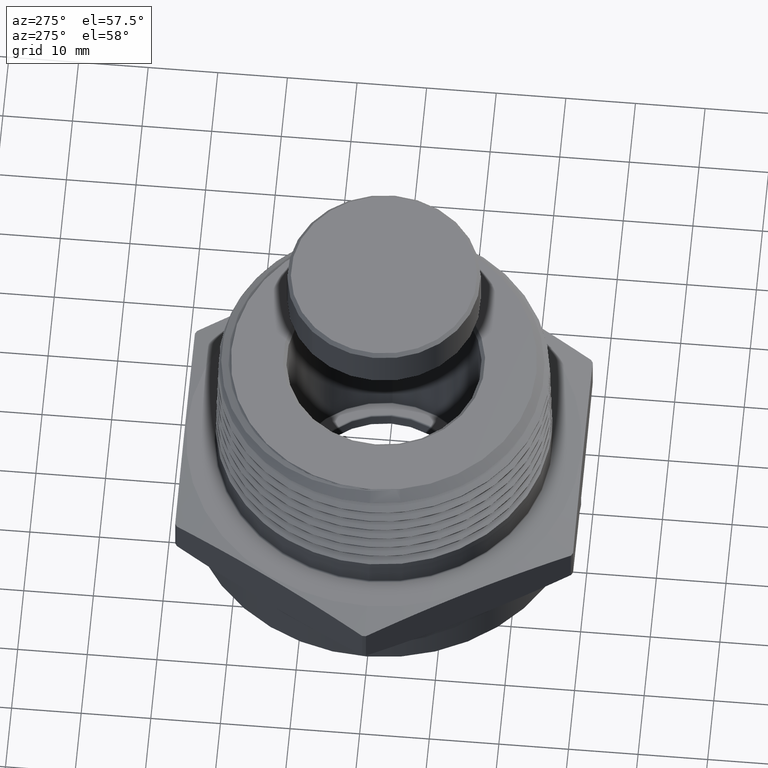
[diagram: clean part render]
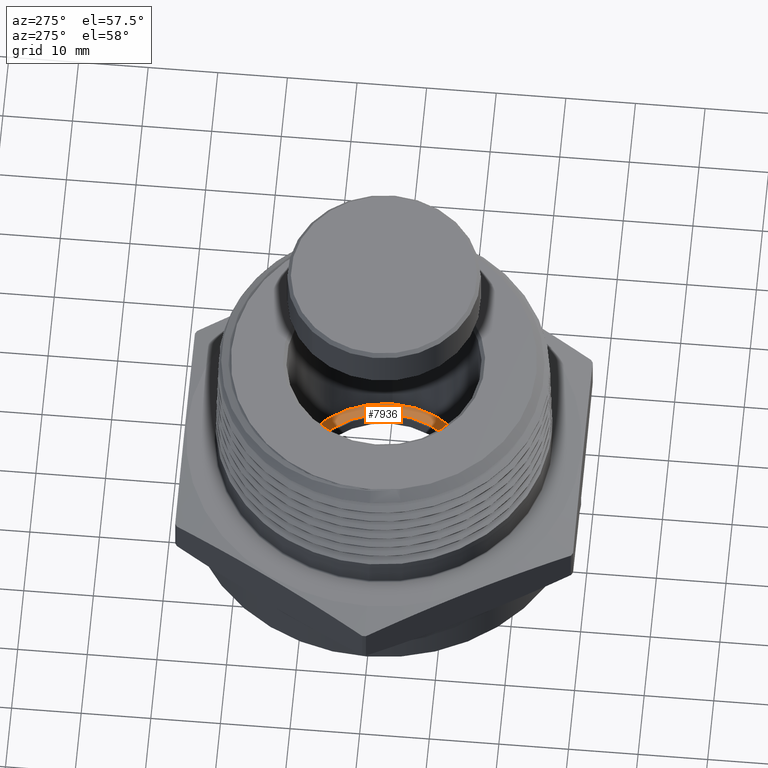
[diagram: same view with one face highlighted and labeled with its STEP entity id]
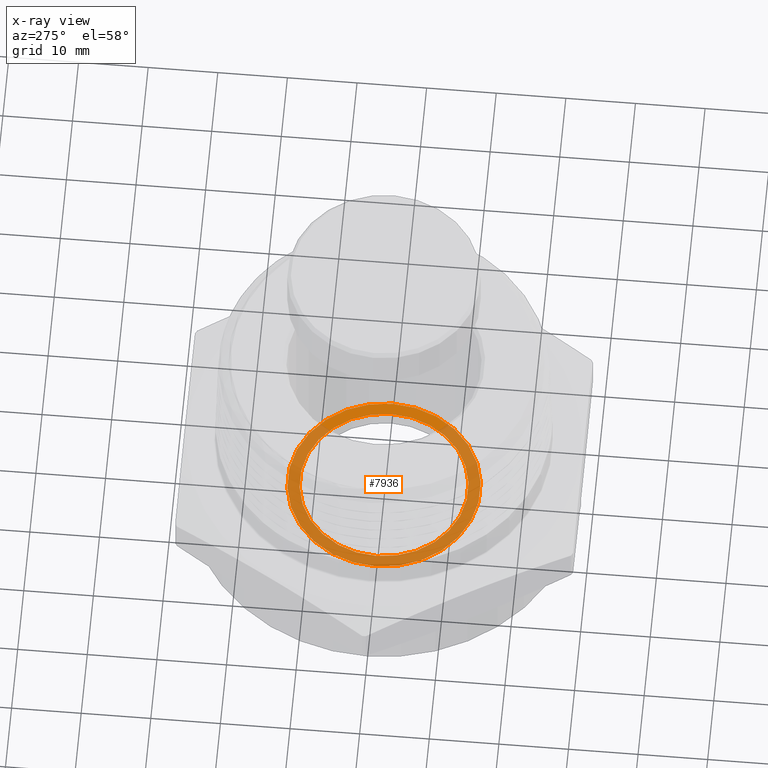
[diagram: x-ray of the same camera — body ghosted, the highlighted face saturated]
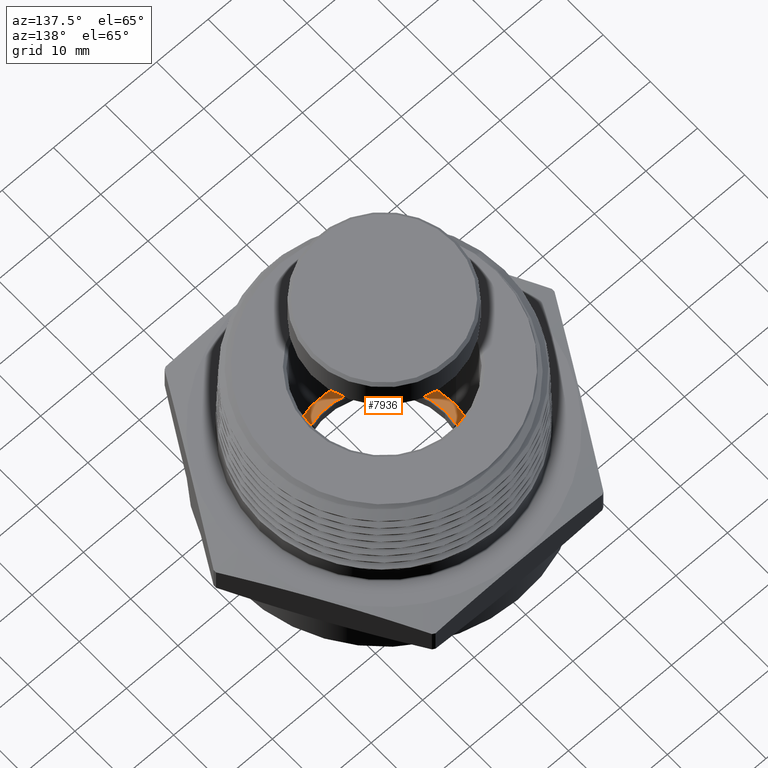
[diagram: same view with one face highlighted and labeled with its STEP entity id]
A machine part, auxiliary view. The second image highlights one B-rep face of the part: STEP entity #7936.
The next image is the same camera in x-ray: the body ghosted, the highlighted face saturated — about 77% of this face is hidden behind the body in this view.
A second angle (auxiliary view) of the same face is appended — the face is thin or edge-on in the first view.
In plain terms, the highlighted planar face has unit normal (0, 0, 1).
Its self-contained STEP definition (entity closure, byte-faithful):
#110 = AXIS2_PLACEMENT_3D ( 'NONE', #6115, #6116, #6117 ) ;
#111 = AXIS2_PLACEMENT_3D ( 'NONE', #6118, #6119, #6120 ) ;
#118 = AXIS2_PLACEMENT_3D ( 'NONE', #882, #883, #884 ) ;
#342 = CARTESIAN_POINT ( 'NONE',  ( 0.5450000000000000400, 0.0000000000000000000, -0.1959999999999999800 ) ) ;
#343 = CARTESIAN_POINT ( 'NONE',  ( -0.4760000000000002000, 5.829318763941404400E-017, -0.1959999999999999800 ) ) ;
#353 = CARTESIAN_POINT ( 'NONE',  ( 0.4760000000000002000, 0.0000000000000000000, -0.1959999999999999800 ) ) ;
#361 = CARTESIAN_POINT ( 'NONE',  ( -0.5450000000000000400, 6.704941225331759400E-017, -0.1959999999999999800 ) ) ;
#882 = CARTESIAN_POINT ( 'NONE',  ( 7.970242977951915400E-018, 0.0000000000000000000, -0.1959999999999999800 ) ) ;
#883 = DIRECTION ( 'NONE',  ( -2.198820216922793900E-017, 0.0000000000000000000, -1.000000000000000000 ) ) ;
#884 = DIRECTION ( 'NONE',  ( 1.000000000000000000, 0.0000000000000000000, 0.0000000000000000000 ) ) ;
#1629 = CIRCLE ( 'NONE', #3016, 0.5450000000000000400 ) ;
#1718 = FACE_BOUND ( 'NONE', #7830, .T. ) ;
#1720 = FACE_OUTER_BOUND ( 'NONE', #7839, .T. ) ;
#1742 = AXIS2_PLACEMENT_3D ( 'NONE', #3684, #3688, #3689 ) ;
#2143 = VERTEX_POINT ( 'NONE', #342 ) ;
#2146 = VERTEX_POINT ( 'NONE', #343 ) ;
#2152 = VERTEX_POINT ( 'NONE', #353 ) ;
#2160 = VERTEX_POINT ( 'NONE', #361 ) ;
#3016 = AXIS2_PLACEMENT_3D ( 'NONE', #3053, #3054, #3055 ) ;
#3053 = CARTESIAN_POINT ( 'NONE',  ( 7.970242977951915400E-018, 0.0000000000000000000, -0.1959999999999999800 ) ) ;
#3054 = DIRECTION ( 'NONE',  ( 2.198820216922793900E-017, -0.0000000000000000000, 1.000000000000000000 ) ) ;
#3055 = DIRECTION ( 'NONE',  ( 1.000000000000000000, 0.0000000000000000000, 0.0000000000000000000 ) ) ;
#3684 = CARTESIAN_POINT ( 'NONE',  ( -0.4660000000000001900, 0.0000000000000000000, -0.1959999999999999800 ) ) ;
#3686 = PLANE ( 'NONE',  #1742 ) ;
#3688 = DIRECTION ( 'NONE',  ( 2.198820216922793900E-017, -0.0000000000000000000, 1.000000000000000000 ) ) ;
#3689 = DIRECTION ( 'NONE',  ( 1.000000000000000000, 0.0000000000000000000, -2.198820216922793900E-017 ) ) ;
#5787 = EDGE_CURVE ( 'NONE', #2152, #2146, #7588, .T. ) ;
#5788 = EDGE_CURVE ( 'NONE', #2143, #2160, #7590, .T. ) ;
#5797 = EDGE_CURVE ( 'NONE', #2146, #2152, #7601, .T. ) ;
#5899 = ORIENTED_EDGE ( 'NONE', *, *, #5787, .T. ) ;
#5900 = ORIENTED_EDGE ( 'NONE', *, *, #5797, .T. ) ;
#5901 = ORIENTED_EDGE ( 'NONE', *, *, #5788, .T. ) ;
#5902 = ORIENTED_EDGE ( 'NONE', *, *, #6214, .T. ) ;
#6115 = CARTESIAN_POINT ( 'NONE',  ( 7.970242977951915400E-018, 0.0000000000000000000, -0.1959999999999999800 ) ) ;
#6116 = DIRECTION ( 'NONE',  ( -2.198820216922793900E-017, 0.0000000000000000000, -1.000000000000000000 ) ) ;
#6117 = DIRECTION ( 'NONE',  ( 1.000000000000000000, 0.0000000000000000000, 0.0000000000000000000 ) ) ;
#6118 = CARTESIAN_POINT ( 'NONE',  ( 7.970242977951915400E-018, 0.0000000000000000000, -0.1959999999999999800 ) ) ;
#6119 = DIRECTION ( 'NONE',  ( 2.198820216922793900E-017, -0.0000000000000000000, 1.000000000000000000 ) ) ;
#6120 = DIRECTION ( 'NONE',  ( 1.000000000000000000, 0.0000000000000000000, 0.0000000000000000000 ) ) ;
#6214 = EDGE_CURVE ( 'NONE', #2160, #2143, #1629, .T. ) ;
#7588 = CIRCLE ( 'NONE', #110, 0.4760000000000002000 ) ;
#7590 = CIRCLE ( 'NONE', #111, 0.5450000000000000400 ) ;
#7601 = CIRCLE ( 'NONE', #118, 0.4760000000000002000 ) ;
#7830 = EDGE_LOOP ( 'NONE', ( #5899, #5900 ) ) ;
#7839 = EDGE_LOOP ( 'NONE', ( #5901, #5902 ) ) ;
#7936 = ADVANCED_FACE ( 'NONE', ( #1718, #1720 ), #3686, .T. ) ;